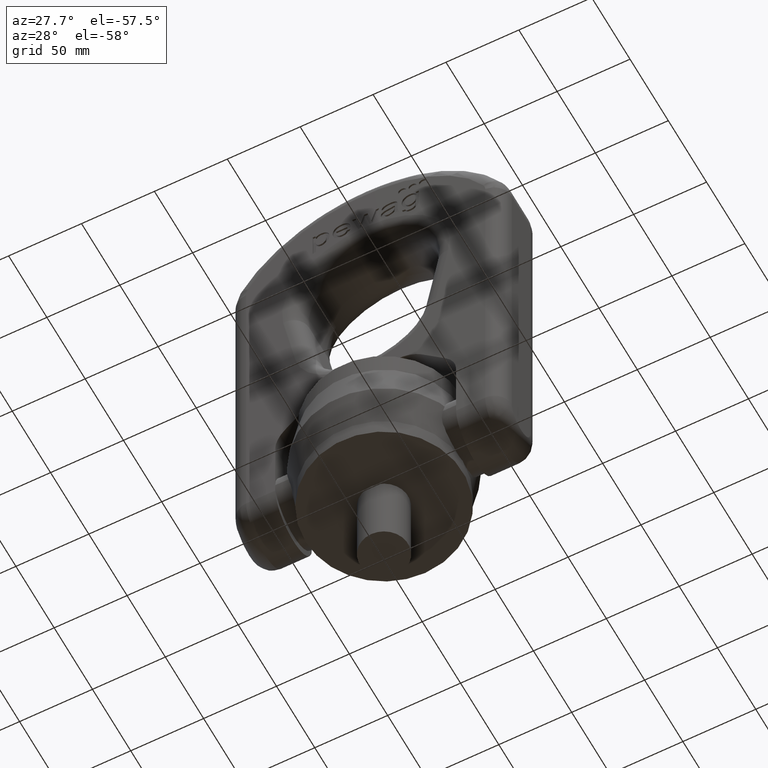
[diagram: clean part render]
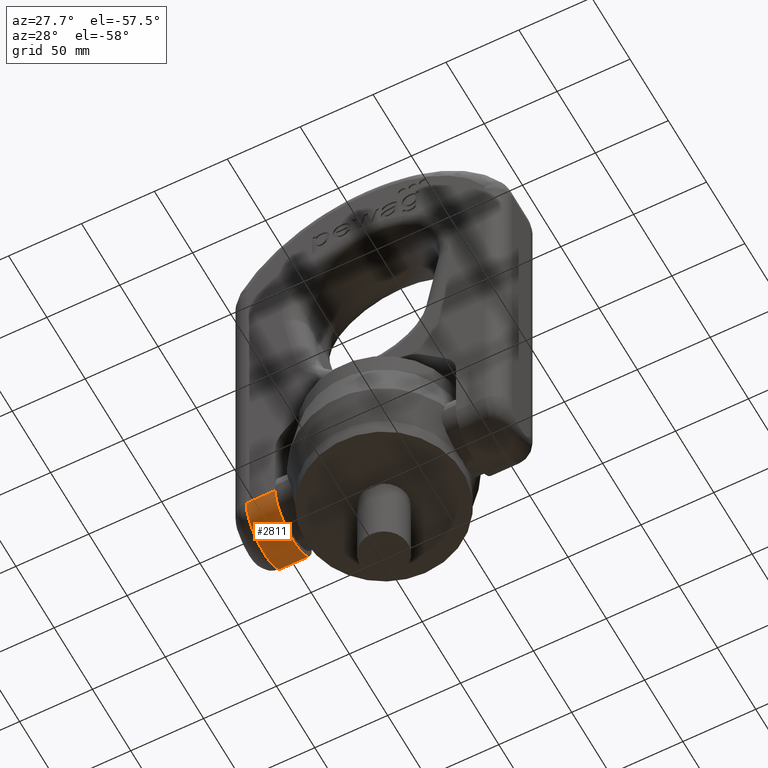
[diagram: same view with one face highlighted and labeled with its STEP entity id]
A machine part, auxiliary view. The second image highlights one B-rep face of the part: STEP entity #2811.
In plain terms, the highlighted cylindrical surface (partial cylindrical patch) has radius 24 mm, axis along (-1, 0, 0).
Its self-contained STEP definition (entity closure, byte-faithful):
#1770=LINE('',#7054,#2078);
#1771=LINE('',#7059,#2079);
#2078=VECTOR('',#6179,1.);
#2079=VECTOR('',#6182,1.);
#2453=FACE_OUTER_BOUND('',#3171,.T.);
#2811=ADVANCED_FACE('',(#2453),#3043,.T.);
#3043=CYLINDRICAL_SURFACE('',#5866,23.9999999999999);
#3171=EDGE_LOOP('',(#3529,#3530,#3531,#3532));
#3529=ORIENTED_EDGE('',*,*,#5169,.F.);
#3530=ORIENTED_EDGE('',*,*,#5170,.T.);
#3531=ORIENTED_EDGE('',*,*,#5171,.F.);
#3532=ORIENTED_EDGE('',*,*,#5172,.T.);
#4737=VERTEX_POINT('',#7055);
#4738=VERTEX_POINT('',#7056);
#4739=VERTEX_POINT('',#7058);
#4740=VERTEX_POINT('',#7060);
#5169=EDGE_CURVE('',#4737,#4738,#1770,.T.);
#5170=EDGE_CURVE('',#4737,#4739,#5760,.T.);
#5171=EDGE_CURVE('',#4740,#4739,#1771,.T.);
#5172=EDGE_CURVE('',#4740,#4738,#5761,.T.);
#5760=CIRCLE('',#5864,23.9999999999999);
#5761=CIRCLE('',#5865,23.9999999999999);
#5864=AXIS2_PLACEMENT_3D('',#7057,#6180,#6181);
#5865=AXIS2_PLACEMENT_3D('',#7061,#6183,#6184);
#5866=AXIS2_PLACEMENT_3D('',#7062,#6185,#6186);
#6179=DIRECTION('',(1.,0.,-1.16263381900573E-15));
#6180=DIRECTION('',(1.,0.,-1.04738021191052E-16));
#6181=DIRECTION('',(0.,0.,-1.));
#6182=DIRECTION('',(-1.,2.34291072916505E-15,1.16263381900573E-15));
#6183=DIRECTION('',(-1.,0.,2.39272203583008E-16));
#6184=DIRECTION('',(-2.89120579329469E-16,0.,-1.));
#6185=DIRECTION('',(-1.,1.17186107153752E-15,1.16263381900573E-15));
#6186=DIRECTION('',(-1.15648231731788E-15,-1.,0.));
#7054=CARTESIAN_POINT('',(94.0000000000001,-24.,29.9999999999999));
#7055=CARTESIAN_POINT('',(-82.,-24.,30.0000000000001));
#7056=CARTESIAN_POINT('',(-62.04,-23.9999999999998,30.));
#7057=CARTESIAN_POINT('',(-82.,9.52252461280885E-14,30.0000000000001));
#7058=CARTESIAN_POINT('',(-82.,24.0000000000002,30.0000000000001));
#7059=CARTESIAN_POINT('',(94.0000000000001,23.9999999999998,29.9999999999999));
#7060=CARTESIAN_POINT('',(-62.04,24.0000000000001,29.9999999999999));
#7061=CARTESIAN_POINT('',(-62.04,7.18348991401996E-14,30.0000000000001));
#7062=CARTESIAN_POINT('',(94.0000000000001,-1.11022302462516E-13,29.9999999999999));